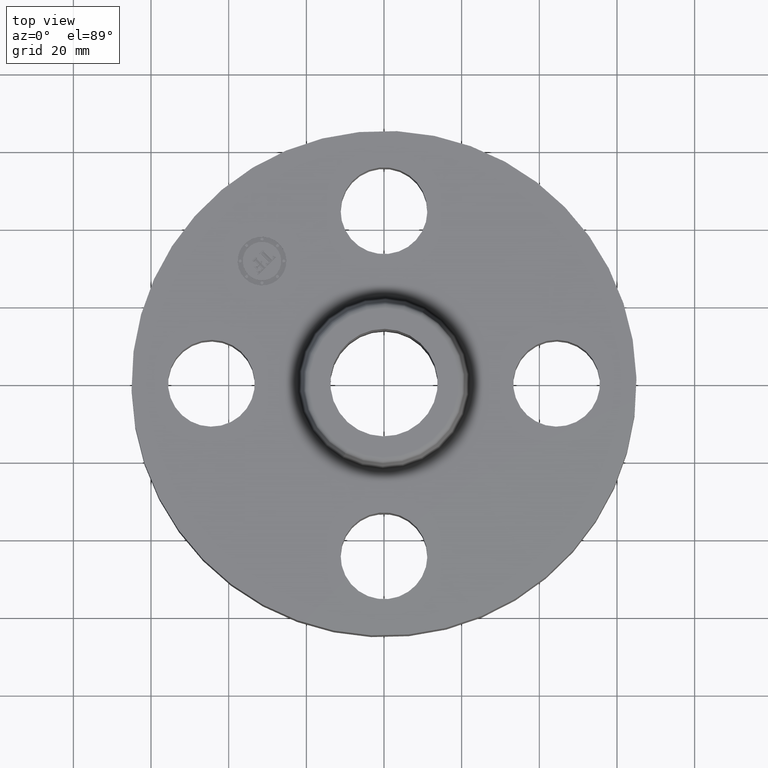
[diagram: clean part render]
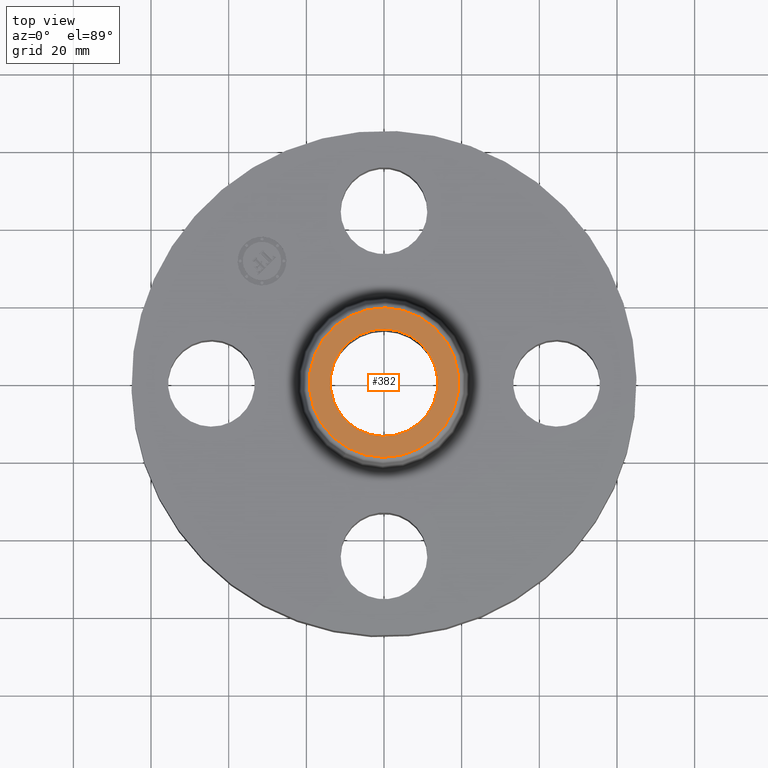
[diagram: same view with one face highlighted and labeled with its STEP entity id]
A machine part, top view. The second image highlights one B-rep face of the part: STEP entity #382.
In plain terms, the highlighted planar face has unit normal (0, 0, -1).
Its self-contained STEP definition (entity closure, byte-faithful):
#326=AXIS2_PLACEMENT_3D('Circle Axis2P3D',#324,#325,$) ;
#345=AXIS2_PLACEMENT_3D('Circle Axis2P3D',#343,#344,$) ;
#358=AXIS2_PLACEMENT_3D('Plane Axis2P3D',#355,#356,#357) ;
#366=AXIS2_PLACEMENT_3D('Circle Axis2P3D',#364,#365,$) ;
#375=AXIS2_PLACEMENT_3D('Circle Axis2P3D',#373,#374,$) ;
#321=CARTESIAN_POINT('Vertex',(0.363236648798,0.664900225701,1.38000000001)) ;
#324=CARTESIAN_POINT('Axis2P3D Location',(0.,0.,1.38000000001)) ;
#328=CARTESIAN_POINT('Vertex',(-0.363236648798,-0.664900225701,1.38000000001)) ;
#343=CARTESIAN_POINT('Axis2P3D Location',(0.,0.,1.38000000001)) ;
#355=CARTESIAN_POINT('Axis2P3D Location',(0.,0.757649769463,1.38000000001)) ;
#364=CARTESIAN_POINT('Axis2P3D Location',(0.,0.,1.38000000001)) ;
#368=CARTESIAN_POINT('Vertex',(-0.26128691854,-0.478282496232,1.38000000001)) ;
#370=CARTESIAN_POINT('Vertex',(0.26128691854,0.478282496232,1.38000000001)) ;
#373=CARTESIAN_POINT('Axis2P3D Location',(0.,0.,1.38000000001)) ;
#325=DIRECTION('Axis2P3D Direction',(0.,0.,-0.0393700787402)) ;
#344=DIRECTION('Axis2P3D Direction',(0.,0.,-0.0393700787402)) ;
#356=DIRECTION('Axis2P3D Direction',(0.,0.,-0.0393700787402)) ;
#357=DIRECTION('Axis2P3D XDirection',(0.0393700787402,0.,0.)) ;
#365=DIRECTION('Axis2P3D Direction',(0.,0.,-0.0393700787402)) ;
#374=DIRECTION('Axis2P3D Direction',(0.,0.,-0.0393700787402)) ;
#361=ORIENTED_EDGE('',*,*,#330,.F.) ;
#362=ORIENTED_EDGE('',*,*,#347,.F.) ;
#379=ORIENTED_EDGE('',*,*,#372,.T.) ;
#380=ORIENTED_EDGE('',*,*,#377,.T.) ;
#381=FACE_BOUND('',#378,.T.) ;
#382=ADVANCED_FACE('PartBody',(#363,#381),#359,.F.) ;
#327=CIRCLE('generated circle',#326,0.757649769463) ;
#346=CIRCLE('generated circle',#345,0.757649769463) ;
#367=CIRCLE('generated circle',#366,0.545000000002) ;
#376=CIRCLE('generated circle',#375,0.545000000002) ;
#330=EDGE_CURVE('',#322,#329,#327,.T.) ;
#347=EDGE_CURVE('',#329,#322,#346,.T.) ;
#372=EDGE_CURVE('',#369,#371,#367,.T.) ;
#377=EDGE_CURVE('',#371,#369,#376,.T.) ;
#360=EDGE_LOOP('',(#361,#362)) ;
#378=EDGE_LOOP('',(#379,#380)) ;
#363=FACE_OUTER_BOUND('',#360,.T.) ;
#359=PLANE('',#358) ;
#322=VERTEX_POINT('',#321) ;
#329=VERTEX_POINT('',#328) ;
#369=VERTEX_POINT('',#368) ;
#371=VERTEX_POINT('',#370) ;